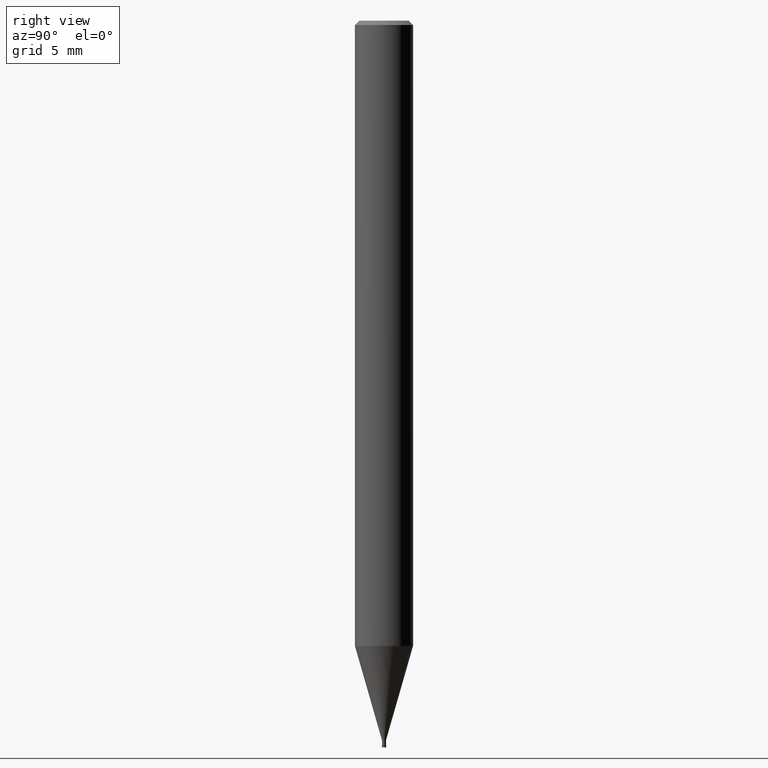
[diagram: clean part render]
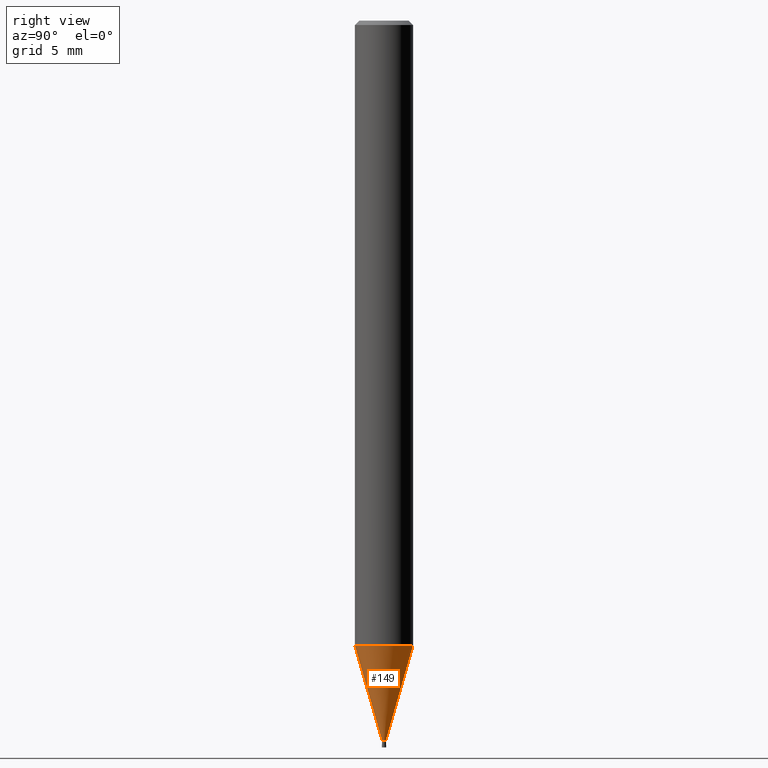
[diagram: same view with one face highlighted and labeled with its STEP entity id]
A machine part, right view. The second image highlights one B-rep face of the part: STEP entity #149.
In plain terms, the highlighted conical surface has half-angle 15.999 deg.
Its self-contained STEP definition (entity closure, byte-faithful):
#143=EDGE_CURVE('',#165,#347,#378,.T.);
#149=ADVANCED_FACE('',(#384),#385,.T.);
#165=VERTEX_POINT('',#407);
#217=EDGE_CURVE('',#347,#305,#462,.T.);
#299=EDGE_CURVE('',#315,#305,#556,.T.);
#305=VERTEX_POINT('',#562);
#315=VERTEX_POINT('',#574);
#333=EDGE_CURVE('',#315,#165,#595,.T.);
#347=VERTEX_POINT('',#610);
#378=CIRCLE('',#638,0.13995);
#384=FACE_OUTER_BOUND('',#646,.T.);
#385=CONICAL_SURFACE('',#647,1.06995,0.27923596926092);
#407=CARTESIAN_POINT('',(0.0,0.13995,-49.49));
#462=LINE('',#745,#746);
#556=CIRCLE('',#860,1.99995);
#562=CARTESIAN_POINT('',(2.44915147732706E-016,-1.99995,-43.003));
#574=CARTESIAN_POINT('',(0.0,1.99995,-43.003));
#595=LINE('',#911,#912);
#610=CARTESIAN_POINT('',(1.71383659217442E-017,-0.13995,-49.49));
#638=AXIS2_PLACEMENT_3D('',#946,#947,#948);
#646=EDGE_LOOP('',(#951,#952,#953,#954));
#647=AXIS2_PLACEMENT_3D('',#955,#956,#957);
#745=CARTESIAN_POINT('',(1.31026756827225E-016,-1.06995,-46.2465));
#746=VECTOR('',#1066,1.0);
#860=AXIS2_PLACEMENT_3D('',#1181,#1182,#1183);
#911=CARTESIAN_POINT('',(-1.31026756827225E-016,1.06995,-46.2465));
#912=VECTOR('',#1232,1.0);
#946=CARTESIAN_POINT('',(0.0,0.0,-49.49));
#947=DIRECTION('',(0.0,0.0,-1.0));
#948=DIRECTION('',(0.0,1.0,0.0));
#951=ORIENTED_EDGE('',*,*,#333,.F.);
#952=ORIENTED_EDGE('',*,*,#299,.T.);
#953=ORIENTED_EDGE('',*,*,#217,.F.);
#954=ORIENTED_EDGE('',*,*,#143,.F.);
#955=CARTESIAN_POINT('',(0.0,0.0,-46.2465));
#956=DIRECTION('',(-0.0,-0.0,1.0));
#957=DIRECTION('',(0.0,1.0,0.0));
#1066=DIRECTION('',(3.37527585527933E-017,-0.275621292078393,0.961266301995986));
#1181=CARTESIAN_POINT('',(0.0,0.0,-43.003));
#1182=DIRECTION('',(0.0,0.0,-1.0));
#1183=DIRECTION('',(0.0,1.0,0.0));
#1232=DIRECTION('',(3.37527585527933E-017,-0.275621292078393,-0.961266301995986));